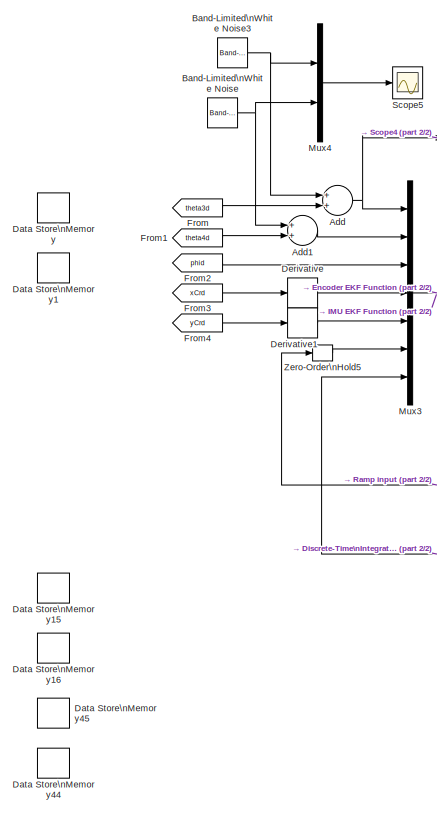
[diagram: root canvas - part 1/2, left side, full height]
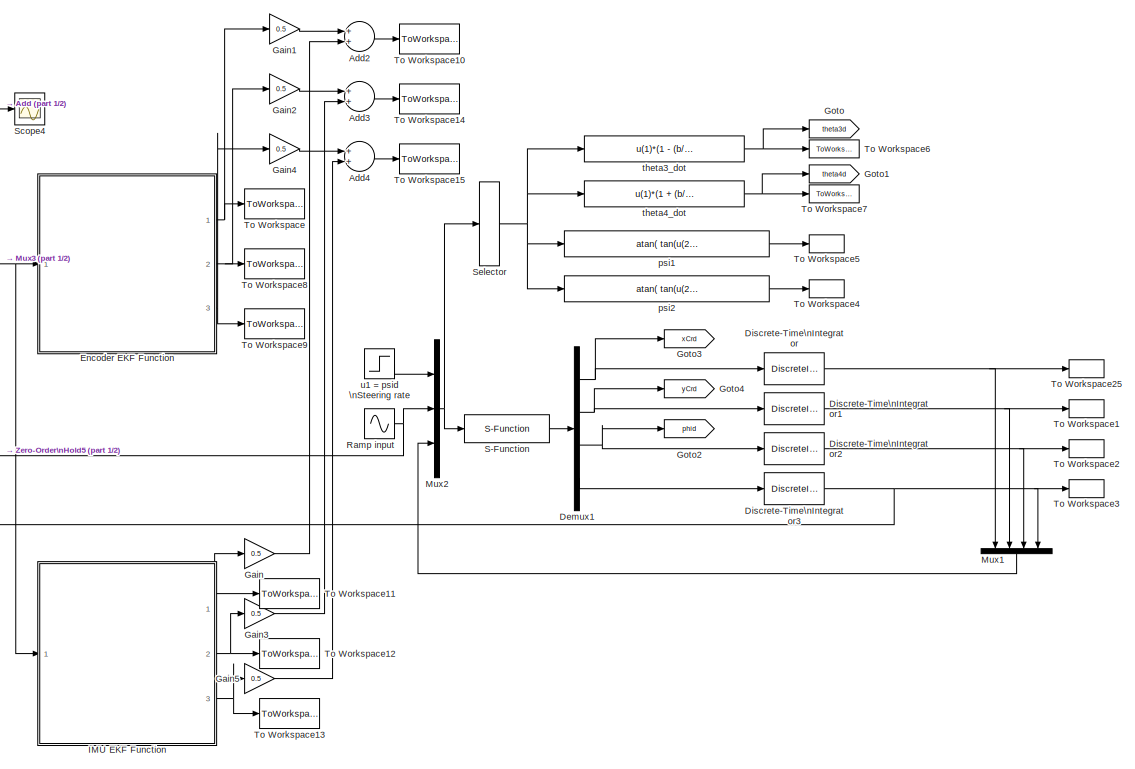
[diagram: root canvas - part 2/2, center side, full height]
MODEL BackWheelCarLike
KIND model
BLOCK [Sum] Add
  InputSameDT = off
  OutDataTypeStr = Inherit: Inherit via internal rule
  Ports = [2, 1]
  SID = 86
  SaturateOnIntegerOverflow = off
BLOCK [Sum] Add1
  InputSameDT = off
  OutDataTypeStr = Inherit: Inherit via internal rule
  Ports = [2, 1]
  SID = 87
  SaturateOnIntegerOverflow = off
BLOCK [Sum] Add2
  InputSameDT = off
  OutDataTypeStr = Inherit: Inherit via internal rule
  Ports = [2, 1]
  SID = 197
  SaturateOnIntegerOverflow = off
BLOCK [Sum] Add3
  InputSameDT = off
  OutDataTypeStr = Inherit: Inherit via internal rule
  Ports = [2, 1]
  SID = 199
  SaturateOnIntegerOverflow = off
BLOCK [Sum] Add4
  InputSameDT = off
  OutDataTypeStr = Inherit: Inherit via internal rule
  Ports = [2, 1]
  SID = 203
  SaturateOnIntegerOverflow = off
BLOCK [Reference] Band-Limited\nWhite Noise  REF=simulink/Sources/Band-Limited\nWhite Noise
  Cov = [0.01]
  Ports = [0, 1]
  SID = 163
  SourceBlock = simulink/Sources/Band-Limited\nWhite Noise
  SourceProductBaseCode = SL
  SourceProductName = Simulink
  SourceType = Band-Limited White Noise.
  Ts = Ts
  VectorParams1D = on
  seed = [12334]
BLOCK [Reference] Band-Limited\nWhite Noise3  REF=simulink/Sources/Band-Limited\nWhite Noise
  Cov = [0.01]
  Ports = [0, 1]
  SID = 164
  SourceBlock = simulink/Sources/Band-Limited\nWhite Noise
  SourceProductBaseCode = SL
  SourceProductName = Simulink
  SourceType = Band-Limited White Noise.
  Ts = Ts
  VectorParams1D = on
  seed = [12334]
BLOCK [DataStoreMemory] Data Store\nMemory
  DataStoreName = P
  InitialValue = P
  OutDataTypeStr = double
  ReadBeforeWriteMsg = warning
  SID = 61
  ShowAdditionalParam = off
  SignalType = real
  WriteAfterReadMsg = warning
  WriteAfterWriteMsg = warning
BLOCK [DataStoreMemory] Data Store\nMemory1
  DataStoreName = X
  InitialValue = X
  OutDataTypeStr = double
  ReadBeforeWriteMsg = warning
  SID = 62
  ShowAdditionalParam = off
  SignalType = real
  WriteAfterReadMsg = warning
  WriteAfterWriteMsg = warning
BLOCK [DataStoreMemory] Data Store\nMemory15
  DataStoreName = PI
  InitialValue = PI
  OutDataTypeStr = double
  ReadBeforeWriteMsg = warning
  SID = 108
  ShowAdditionalParam = off
  SignalType = real
  WriteAfterReadMsg = warning
  WriteAfterWriteMsg = warning
BLOCK [DataStoreMemory] Data Store\nMemory16
  DataStoreName = XI
  InitialValue = XI
  OutDataTypeStr = double
  ReadBeforeWriteMsg = warning
  SID = 109
  ShowAdditionalParam = off
  SignalType = real
  WriteAfterReadMsg = warning
  WriteAfterWriteMsg = warning
BLOCK [DataStoreMemory] Data Store\nMemory44
  DataStoreName = vy
  InitialValue = vy
  OutDataTypeStr = double
  ReadBeforeWriteMsg = warning
  SID = 157
  ShowAdditionalParam = off
  SignalType = real
  WriteAfterReadMsg = warning
  WriteAfterWriteMsg = warning
BLOCK [DataStoreMemory] Data Store\nMemory45
  DataStoreName = vx
  InitialValue = vx
  OutDataTypeStr = double
  ReadBeforeWriteMsg = warning
  SID = 158
  ShowAdditionalParam = off
  SignalType = real
  WriteAfterReadMsg = warning
  WriteAfterWriteMsg = warning
BLOCK [Demux] Demux1
  Ports = [1, 4]
  SID = 1
BLOCK [Derivative] Derivative
  SID = 178
BLOCK [Derivative] Derivative1
  SID = 179
BLOCK [DiscreteIntegrator] Discrete-Time\nIntegrator
  ICPrevOutput = DiscIntNeverNeededParam
  ICPrevScaledInput = DiscIntNeverNeededParam
  InitialCondition = xCr_init
  InitialConditionSetting = Auto
  IntegratorMethod = Integration: Backward Euler
  Ports = [1, 1]
  SID = 161
  SampleTime = -1
BLOCK [DiscreteIntegrator] Discrete-Time\nIntegrator1
  ICPrevOutput = DiscIntNeverNeededParam
  ICPrevScaledInput = DiscIntNeverNeededParam
  InitialCondition = yCr_init
  InitialConditionSetting = Auto
  IntegratorMethod = Integration: Backward Euler
  Ports = [1, 1]
  SID = 162
  SampleTime = -1
BLOCK [DiscreteIntegrator] Discrete-Time\nIntegrator2
  ICPrevOutput = DiscIntNeverNeededParam
  ICPrevScaledInput = DiscIntNeverNeededParam
  InitialCondition = phi_init
  InitialConditionSetting = Auto
  IntegratorMethod = Integration: Backward Euler
  Ports = [1, 1]
  SID = 166
  SampleTime = -1
BLOCK [DiscreteIntegrator] Discrete-Time\nIntegrator3
  ICPrevOutput = DiscIntNeverNeededParam
  ICPrevScaledInput = DiscIntNeverNeededParam
  InitialCondition = psi_init
  InitialConditionSetting = Auto
  IntegratorMethod = Integration: Backward Euler
  Ports = [1, 1]
  SID = 167
  SampleTime = -1
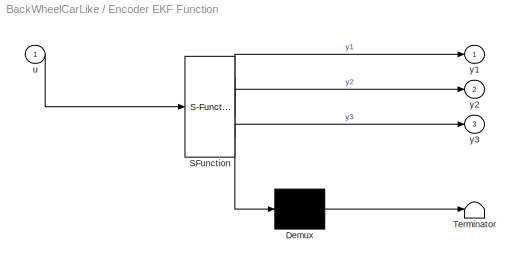
BLOCK [SubSystem] Encoder EKF Function
  ErrorFcn = Stateflow.Translate.translate
  PermitHierarchicalResolution = ExplicitOnly
  Ports = [1, 3]
  RequestExecContextInheritance = off
  SFBlockType = MATLAB Function
  SID = 37
  TreatAsAtomicUnit = on
BLOCK [Demux] Encoder EKF Function/ Demux 
  Outputs = 1
  Ports = [1, 1]
  SID = 37::23
BLOCK [S-Function] Encoder EKF Function/ SFunction 
  EnableBusSupport = on
  FunctionName = sf_sfun
  PortCounts = [1 4]
  Ports = [1, 4]
  SFcnIsStateOwnerBlock = off
  SFunctionDeploymentMode = off
  SID = 37::22
  Tag = Stateflow S-Function BackWheelCarLike 2
BLOCK [Terminator] Encoder EKF Function/ Terminator 
  SID = 37::24
BLOCK [Inport] Encoder EKF Function/u
  IconDisplay = Port number
  SID = 37::1
BLOCK [Outport] Encoder EKF Function/y1
  IconDisplay = Port number
  SID = 37::5
BLOCK [Outport] Encoder EKF Function/y2
  IconDisplay = Port number
  Port = 2
  SID = 37::25
BLOCK [Outport] Encoder EKF Function/y3
  IconDisplay = Port number
  Port = 3
  SID = 37::26
BLOCK [From] From
  GotoTag = theta3d
  SID = 26
BLOCK [From] From1
  GotoTag = theta4d
  SID = 34
BLOCK [From] From2
  GotoTag = phid
  SID = 35
BLOCK [From] From3
  GotoTag = xCrd
  SID = 40
BLOCK [From] From4
  GotoTag = yCrd
  SID = 41
BLOCK [Gain] Gain
  Gain = 0.5
  OutDataTypeStr = Inherit: Inherit via internal rule
  ParamDataTypeStr = Inherit: Inherit via internal rule
  SID = 195
  SaturateOnIntegerOverflow = off
BLOCK [Gain] Gain1
  Gain = 0.5
  OutDataTypeStr = Inherit: Inherit via internal rule
  ParamDataTypeStr = Inherit: Inherit via internal rule
  SID = 196
  SaturateOnIntegerOverflow = off
BLOCK [Gain] Gain2
  Gain = 0.5
  OutDataTypeStr = Inherit: Inherit via internal rule
  ParamDataTypeStr = Inherit: Inherit via internal rule
  SID = 200
  SaturateOnIntegerOverflow = off
BLOCK [Gain] Gain3
  Gain = 0.5
  OutDataTypeStr = Inherit: Inherit via internal rule
  ParamDataTypeStr = Inherit: Inherit via internal rule
  SID = 202
  SaturateOnIntegerOverflow = off
BLOCK [Gain] Gain4
  Gain = 0.5
  OutDataTypeStr = Inherit: Inherit via internal rule
  ParamDataTypeStr = Inherit: Inherit via internal rule
  SID = 204
  SaturateOnIntegerOverflow = off
BLOCK [Gain] Gain5
  Gain = 0.5
  OutDataTypeStr = Inherit: Inherit via internal rule
  ParamDataTypeStr = Inherit: Inherit via internal rule
  SID = 206
  SaturateOnIntegerOverflow = off
BLOCK [Goto] Goto
  GotoTag = theta3d
  SID = 27
BLOCK [Goto] Goto1
  GotoTag = theta4d
  SID = 32
BLOCK [Goto] Goto2
  GotoTag = phid
  SID = 33
BLOCK [Goto] Goto3
  GotoTag = xCrd
  SID = 38
BLOCK [Goto] Goto4
  GotoTag = yCrd
  SID = 39
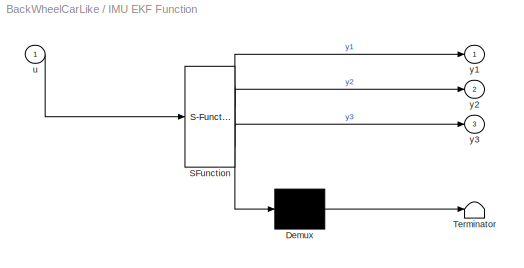
BLOCK [SubSystem] IMU EKF Function
  ErrorFcn = Stateflow.Translate.translate
  PermitHierarchicalResolution = ExplicitOnly
  Ports = [1, 3]
  RequestExecContextInheritance = off
  SFBlockType = MATLAB Function
  SID = 104
  TreatAsAtomicUnit = on
BLOCK [Demux] IMU EKF Function/ Demux 
  Outputs = 1
  Ports = [1, 1]
  SID = 104::23
BLOCK [S-Function] IMU EKF Function/ SFunction 
  EnableBusSupport = on
  FunctionName = sf_sfun
  PortCounts = [1 4]
  Ports = [1, 4]
  SFcnIsStateOwnerBlock = off
  SFunctionDeploymentMode = off
  SID = 104::22
  Tag = Stateflow S-Function BackWheelCarLike 1
BLOCK [Terminator] IMU EKF Function/ Terminator 
  SID = 104::24
BLOCK [Inport] IMU EKF Function/u
  IconDisplay = Port number
  SID = 104::1
BLOCK [Outport] IMU EKF Function/y1
  IconDisplay = Port number
  SID = 104::5
BLOCK [Outport] IMU EKF Function/y2
  IconDisplay = Port number
  Port = 2
  SID = 104::25
BLOCK [Outport] IMU EKF Function/y3
  IconDisplay = Port number
  Port = 3
  SID = 104::26
BLOCK [Mux] Mux1
  DisplayOption = bar
  Ports = [4, 1]
  SID = 2
BLOCK [Mux] Mux2
  DisplayOption = bar
  Inputs = 3
  Ports = [3, 1]
  SID = 3
BLOCK [Mux] Mux3
  DisplayOption = bar
  Inputs = 7
  Ports = [7, 1]
  SID = 36
BLOCK [Mux] Mux4
  DisplayOption = bar
  Inputs = 2
  Ports = [2, 1]
  SID = 98
BLOCK [Sin] Ramp input
  Amplitude = 0
  Bias = v_init
  Frequency = .2*pi
  Ports = [0, 1]
  SID = 149
  SampleTime = 0
BLOCK [S-Function] S-Function
  EnableBusSupport = off
  FunctionName = BW_Kinematics
  Ports = [1, 1]
  SFcnIsStateOwnerBlock = off
  SFunctionDeploymentMode = off
  SID = 4
BLOCK [Scope] Scope4
  Floating = off
  NumInputPorts = 1
  Ports = [1]
  SID = 207
  ScopeSpecificationString = Simulink.scopes.TimeScopeBlockCfg('CurrentConfiguration', extmgr.ConfigurationSet(extmgr.Configuration('Core','General UI',true),extmgr.Configuration('Core','Source UI',true),extmgr.Configuration('Sources','WiredSimulink',true,'DataLoggingVariableName','ScopeData5'),extmgr.Configuration('Visuals','Time Domain',true,'SerializedDisplays',{struct('MinYLimReal','12.49362','MaxYLimReal','18.69551','YLa...<+1387ch>
BLOCK [Scope] Scope5
  Floating = off
  NumInputPorts = 1
  Ports = [1]
  SID = 99
  ScopeSpecificationString = Simulink.scopes.TimeScopeBlockCfg('CurrentConfiguration', extmgr.ConfigurationSet(extmgr.Configuration('Core','General UI',true),extmgr.Configuration('Core','Source UI',true),extmgr.Configuration('Sources','WiredSimulink',true,'DataLoggingVariableName','ScopeData5'),extmgr.Configuration('Visuals','Time Domain',true,'SerializedDisplays',{struct('MinYLimReal','-2.891','MaxYLimReal','3.31089','YLabel...<+1461ch>
BLOCK [Selector] Selector
  IndexOptions = Index vector (dialog)
  Indices = [2 6]
  InputPortWidth = 6
  OutputSizes = 1
  Ports = [1, 1]
  SID = 16
BLOCK [ToWorkspace] To Workspace
  FixptAsFi = on
  MaxDataPoints = inf
  Ports = [1]
  SID = 78
  SampleTime = -1
  Save2DSignal = 2-D array (concatenate along first dimension)
  VariableName = x_hat
BLOCK [ToWorkspace] To Workspace1
  MaxDataPoints = inf
  Ports = [1]
  SID = 5
  SampleTime = -1
  VariableName = yCr
BLOCK [ToWorkspace] To Workspace10
  FixptAsFi = on
  MaxDataPoints = inf
  Ports = [1]
  SID = 198
  SampleTime = -1
  Save2DSignal = 2-D array (concatenate along first dimension)
  VariableName = x_est
BLOCK [ToWorkspace] To Workspace11
  FixptAsFi = on
  MaxDataPoints = inf
  Ports = [1]
  SID = 105
  SampleTime = -1
  Save2DSignal = 2-D array (concatenate along first dimension)
  VariableName = x_hati
BLOCK [ToWorkspace] To Workspace12
  FixptAsFi = on
  MaxDataPoints = inf
  Ports = [1]
  SID = 106
  SampleTime = -1
  Save2DSignal = 2-D array (concatenate along first dimension)
  VariableName = y_hati
BLOCK [ToWorkspace] To Workspace13
  FixptAsFi = on
  MaxDataPoints = inf
  Ports = [1]
  SID = 107
  SampleTime = -1
  Save2DSignal = 2-D array (concatenate along first dimension)
  VariableName = phi_hati
BLOCK [ToWorkspace] To Workspace14
  FixptAsFi = on
  MaxDataPoints = inf
  Ports = [1]
  SID = 201
  SampleTime = -1
  Save2DSignal = 2-D array (concatenate along first dimension)
  VariableName = y_est
BLOCK [ToWorkspace] To Workspace15
  FixptAsFi = on
  MaxDataPoints = inf
  Ports = [1]
  SID = 205
  SampleTime = -1
  Save2DSignal = 2-D array (concatenate along first dimension)
  VariableName = phi_est
BLOCK [ToWorkspace] To Workspace2
  MaxDataPoints = inf
  Ports = [1]
  SID = 6
  SampleTime = -1
  VariableName = phi
BLOCK [ToWorkspace] To Workspace25
  MaxDataPoints = inf
  Ports = [1]
  SID = 7
  SampleTime = -1
  VariableName = xCr
BLOCK [ToWorkspace] To Workspace3
  MaxDataPoints = inf
  Ports = [1]
  SID = 8
  SampleTime = -1
  VariableName = psi
BLOCK [ToWorkspace] To Workspace4
  MaxDataPoints = inf
  Ports = [1]
  SID = 22
  SampleTime = -1
  VariableName = psi2
BLOCK [ToWorkspace] To Workspace5
  MaxDataPoints = inf
  Ports = [1]
  SID = 23
  SampleTime = -1
  VariableName = psi1
BLOCK [ToWorkspace] To Workspace6
  MaxDataPoints = inf
  Ports = [1]
  SID = 24
  SampleTime = -1
  VariableName = theta3d
BLOCK [ToWorkspace] To Workspace7
  MaxDataPoints = inf
  Ports = [1]
  SID = 25
  SampleTime = -1
  VariableName = theta4d
BLOCK [ToWorkspace] To Workspace8
  FixptAsFi = on
  MaxDataPoints = inf
  Ports = [1]
  SID = 79
  SampleTime = -1
  Save2DSignal = 2-D array (concatenate along first dimension)
  VariableName = y_hat
BLOCK [ToWorkspace] To Workspace9
  FixptAsFi = on
  MaxDataPoints = inf
  Ports = [1]
  SID = 80
  SampleTime = -1
  Save2DSignal = 2-D array (concatenate along first dimension)
  VariableName = phi_hat
BLOCK [ZeroOrderHold] Zero-Order\nHold5
  SID = 142
  SampleTime = -1
BLOCK [Fcn] psi1
  Expr = atan( tan(u(2)) / (1 - (b/2/a)*tan(u(2))) )
  SID = 18
BLOCK [Fcn] psi2
  Expr = atan( tan(u(2)) / (1 + (b/2/a)*tan(u(2))) )
  SID = 21
BLOCK [Fcn] theta3_dot
  Expr = u(1)*(1 - (b/2/a)*tan(u(2)))/rw
  SID = 15
BLOCK [Fcn] theta4_dot
  Expr = u(1)*(1 + (b/2/a)*tan(u(2)))/rw
  SID = 17
BLOCK [Step] u1 = psid \nSteering rate
  After = 0.0873
  SID = 11
  SampleTime = 0
LINE Add1:1 -> Mux3:2
LINE Add2:1 -> To Workspace10:1
LINE Add3:1 -> To Workspace14:1
LINE Add4:1 -> To Workspace15:1
NET Add:1 -> Mux3:1, Scope4:1
NET Band-Limited\nWhite Noise3:1 -> Add:1, Mux4:1
NET Band-Limited\nWhite Noise:1 -> Add1:1, Mux4:2
NET Demux1:1 -> Discrete-Time\nIntegrator:1, Goto3:1
NET Demux1:2 -> Discrete-Time\nIntegrator1:1, Goto4:1
NET Demux1:3 -> Discrete-Time\nIntegrator2:1, Goto2:1
LINE Demux1:4 -> Discrete-Time\nIntegrator3:1
LINE Derivative1:1 -> Mux3:5
LINE Derivative:1 -> Mux3:4
NET Discrete-Time\nIntegrator1:1 -> Mux1:2, To Workspace1:1
NET Discrete-Time\nIntegrator2:1 -> Mux1:3, To Workspace2:1
NET Discrete-Time\nIntegrator3:1 -> Mux1:4, Mux3:7, To Workspace3:1
NET Discrete-Time\nIntegrator:1 -> Mux1:1, To Workspace25:1
LINE Encoder EKF Function/ Demux :1 -> Encoder EKF Function/ Terminator :1
LINE Encoder EKF Function/ SFunction :1 -> Encoder EKF Function/ Demux :1
LINE Encoder EKF Function/ SFunction :2 -> Encoder EKF Function/y1:1
LINE Encoder EKF Function/ SFunction :3 -> Encoder EKF Function/y2:1
LINE Encoder EKF Function/ SFunction :4 -> Encoder EKF Function/y3:1
LINE Encoder EKF Function/u:1 -> Encoder EKF Function/ SFunction :1
NET Encoder EKF Function:1 -> Gain1:1, To Workspace:1
NET Encoder EKF Function:2 -> Gain2:1, To Workspace8:1
NET Encoder EKF Function:3 -> Gain4:1, To Workspace9:1
LINE From1:1 -> Add1:2
LINE From2:1 -> Mux3:3
LINE From3:1 -> Derivative:1
LINE From4:1 -> Derivative1:1
LINE From:1 -> Add:2
LINE Gain1:1 -> Add2:1
LINE Gain2:1 -> Add3:1
LINE Gain3:1 -> Add3:2
LINE Gain4:1 -> Add4:1
LINE Gain5:1 -> Add4:2
LINE Gain:1 -> Add2:2
LINE IMU EKF Function/ Demux :1 -> IMU EKF Function/ Terminator :1
LINE IMU EKF Function/ SFunction :1 -> IMU EKF Function/ Demux :1
LINE IMU EKF Function/ SFunction :2 -> IMU EKF Function/y1:1
LINE IMU EKF Function/ SFunction :3 -> IMU EKF Function/y2:1
LINE IMU EKF Function/ SFunction :4 -> IMU EKF Function/y3:1
LINE IMU EKF Function/u:1 -> IMU EKF Function/ SFunction :1
NET IMU EKF Function:1 -> Gain:1, To Workspace11:1
NET IMU EKF Function:2 -> Gain3:1, To Workspace12:1
NET IMU EKF Function:3 -> Gain5:1, To Workspace13:1
LINE Mux1:1 -> Mux2:3
NET Mux2:1 -> S-Function:1, Selector:1
NET Mux3:1 -> Encoder EKF Function:1, IMU EKF Function:1
LINE Mux4:1 -> Scope5:1
NET Ramp input:1 -> Mux2:2, Zero-Order\nHold5:1
LINE S-Function:1 -> Demux1:1
NET Selector:1 -> psi1:1, psi2:1, theta3_dot:1, theta4_dot:1
LINE Zero-Order\nHold5:1 -> Mux3:6
LINE psi1:1 -> To Workspace5:1
LINE psi2:1 -> To Workspace4:1
NET theta3_dot:1 -> Goto:1, To Workspace6:1
NET theta4_dot:1 -> Goto1:1, To Workspace7:1
LINE u1 = psid \nSteering rate:1 -> Mux2:1
note: NET lines group one-source signal fan-out (src -> all destinations, sorted); 1:1 wires keep LINE
CHART IMU EKF Function states=1 transitions=1
  STATE_LABEL 'eML_blk_kernel()'
CHART Encoder EKF Function states=1 transitions=1
  STATE_LABEL 'eML_blk_kernel()'
